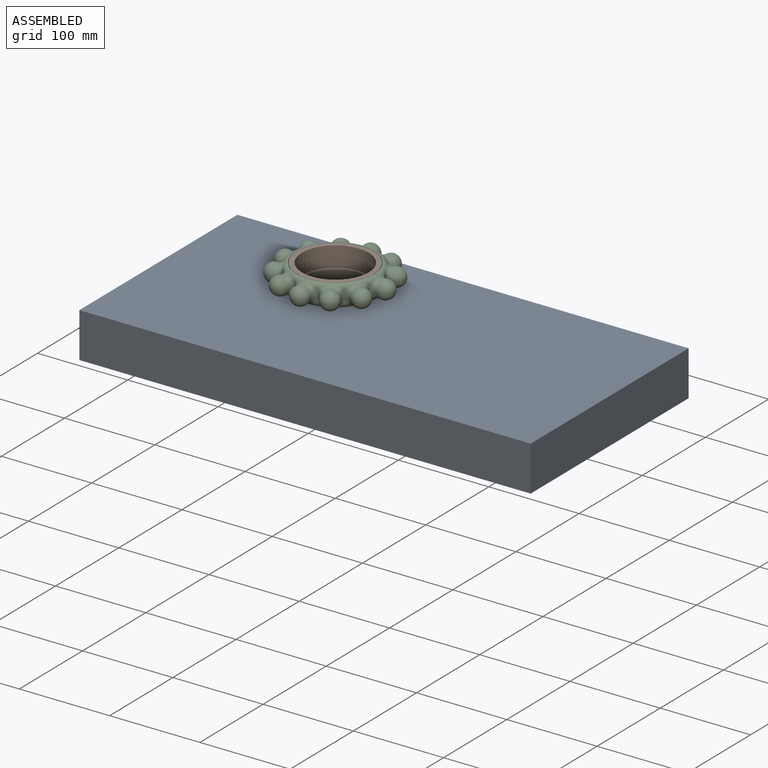
[diagram: assembled view]
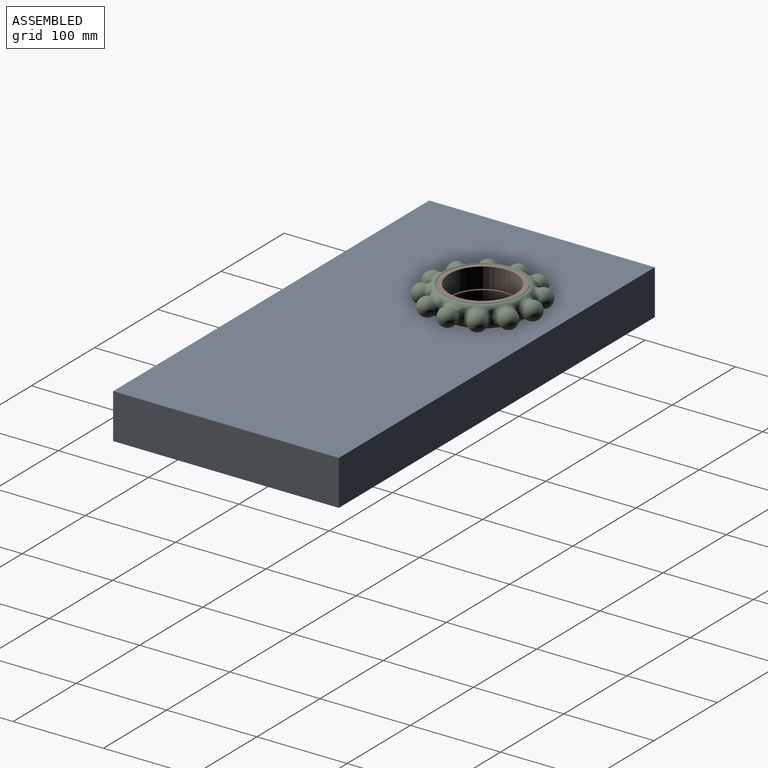
[diagram: assembled view, second angle]
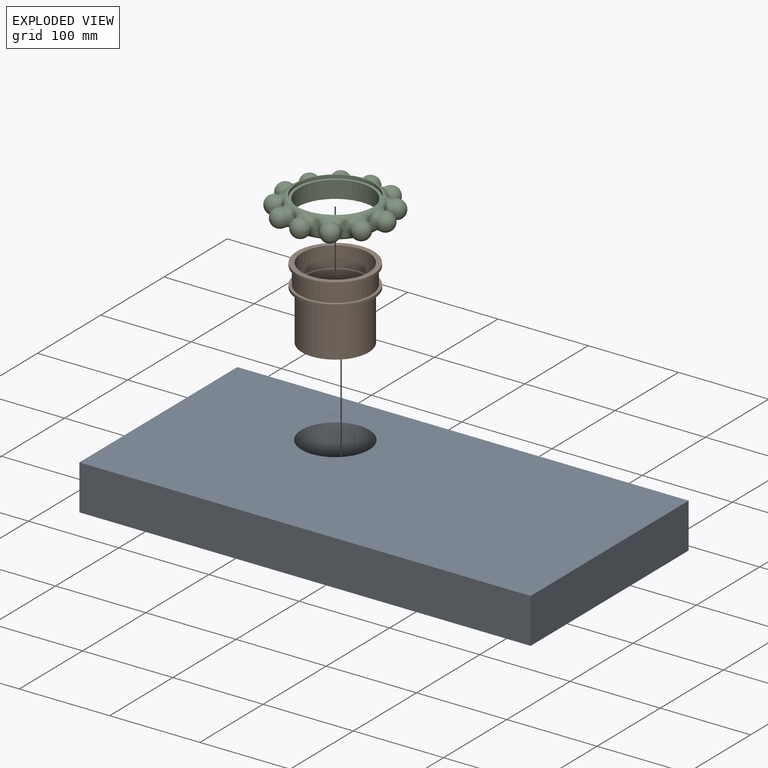
[diagram: exploded view]
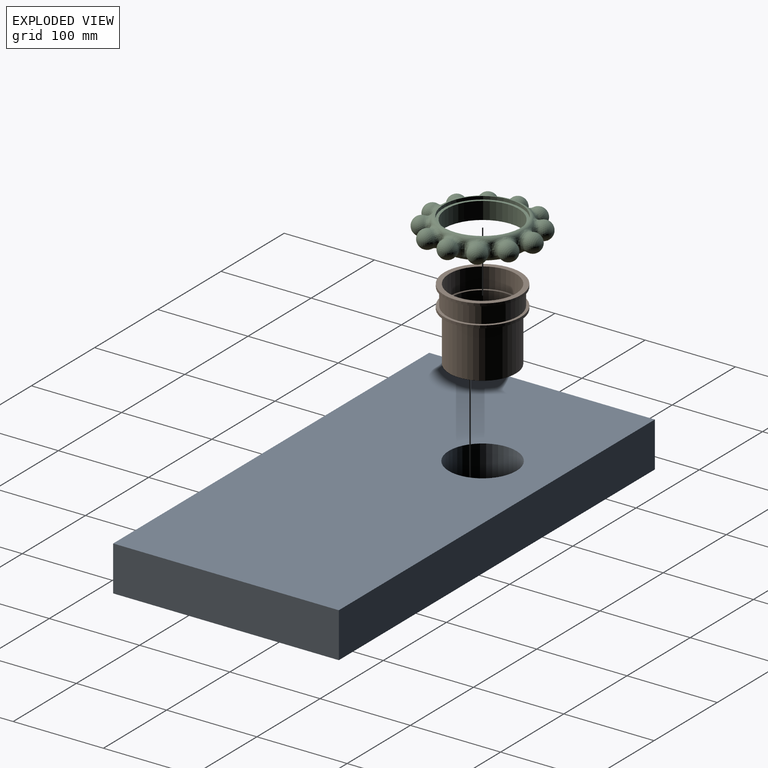
[diagram: exploded view, second angle]
ASSEMBLY  parts=3 mates=2
PART A: 7 faces, bbox 500x250x50 mm
  f0: plane 500x250mm, normal (0,0,-1), area 120582.1mm2, adj f1,f3,f4,f5,f6
  f1: plane 250x50mm, normal (-1,0,0), area 12500mm2, adj f0,f2,f4,f5
  f2: plane 500x250mm, normal (0,0,1), area 120582.1mm2, adj f1,f3,f4,f5,f6
  f3: plane 250x50mm, normal (1,0,0), area 12500mm2, adj f0,f2,f4,f5
  f4: plane 500x50mm, normal (0,1,0), area 25000mm2, adj f0,f1,f2,f3
  f5: plane 500x50mm, normal (0,-1,0), area 25000mm2, adj f0,f1,f2,f3
  f6: cylinder r=37.5mm len=75mm, axis (0,0,1), area 11781mm2, adj f0,f2
PART B: 13 faces, bbox 85x85x80 mm
  f0: plane 74x74mm, normal (0,0,1), area 561.6mm2, adj f1,f3
  f1: cylinder r=34.5mm len=69mm, axis (0,0,1), area 11922.3mm2, adj f0,f2
  f2: plane 69x69mm, normal (0,0,1), area 3739.3mm2, adj f1
  f3: cylinder r=37mm len=74mm, axis (0,0,1), area 5230.8mm2, adj f0,f11
  f4: cylinder r=37mm len=74mm, axis (0,0,1), area 12786.3mm2, adj f5,f7
  f5: plane 74x74mm, normal (0,0,-1), area 4300.8mm2, adj f4
  f6: cylinder r=42.5mm len=85mm, axis (0,0,-1), area 801.1mm2, adj f7,f10
  f7: plane 85x85mm, normal (0,0,-1), area 1373.7mm2, adj f4,f6
  f8: plane 85x85mm, normal (0,0,-1), area 772.8mm2, adj f9,f12
  f9: cylinder r=39.5mm len=79mm, axis (0,0,1), area 4715.5mm2, adj f8,f10
  f10: plane 85x85mm, normal (0,0,1), area 772.8mm2, adj f6,f9
  f11: plane 85x85mm, normal (0,0,1), area 1373.7mm2, adj f3,f12
  f12: cylinder r=42.5mm len=85mm, axis (0,0,-1), area 801.1mm2, adj f8,f11
PART C: 91 faces, bbox 131.1x131.1x24 mm
  f0: cylinder r=48mm len=1.22mm, axis (0,0,-1), area 0.6mm2, adj f30,f85,f88
  f1: cylinder r=48mm len=1.22mm, axis (0,0,-1), area 0.6mm2, adj f29,f85,f88
  f2: cylinder r=48mm len=1.22mm, axis (0,0,-1), area 0.6mm2, adj f30,f77,f79
  f3: cylinder r=48mm len=1.22mm, axis (0,0,-1), area 0.6mm2, adj f29,f77,f79
  f4: cylinder r=48mm len=1.22mm, axis (0,0,-1), area 0.6mm2, adj f30,f69,f71
  f5: cylinder r=48mm len=1.22mm, axis (0,0,-1), area 0.6mm2, adj f29,f69,f71
  f6: cylinder r=48mm len=1.22mm, axis (0,0,-1), area 0.6mm2, adj f30,f61,f63
  f7: cylinder r=48mm len=1.22mm, axis (0,0,-1), area 0.6mm2, adj f29,f61,f63
  f8: cylinder r=48mm len=1.22mm, axis (0,0,-1), area 0.6mm2, adj f30,f53,f55
  f9: cylinder r=48mm len=1.22mm, axis (0,0,-1), area 0.6mm2, adj f29,f53,f55
  f10: cylinder r=48mm len=1.22mm, axis (0,0,-1), area 0.6mm2, adj f30,f45,f47
  f11: cylinder r=48mm len=1.22mm, axis (0,0,-1), area 0.6mm2, adj f29,f45,f47
  f12: cylinder r=48mm len=1.22mm, axis (0,0,-1), area 0.6mm2, adj f30,f46,f48
  f13: cylinder r=48mm len=1.22mm, axis (0,0,-1), area 0.6mm2, adj f29,f46,f48
  f14: cylinder r=48mm len=1.22mm, axis (0,0,-1), area 0.6mm2, adj f30,f54,f56
  f15: cylinder r=48mm len=1.22mm, axis (0,0,-1), area 0.6mm2, adj f29,f54,f56
  f16: cylinder r=48mm len=1.22mm, axis (0,0,-1), area 0.6mm2, adj f30,f62,f64
  f17: cylinder r=48mm len=1.22mm, axis (0,0,-1), area 0.6mm2, adj f29,f62,f64
  f18: cylinder r=48mm len=1.22mm, axis (0,0,-1), area 0.6mm2, adj f30,f70,f72
  f19: cylinder r=48mm len=1.22mm, axis (0,0,-1), area 0.6mm2, adj f29,f70,f72
  f20: cylinder r=48mm len=1.22mm, axis (0,0,-1), area 0.6mm2, adj f29,f87,f89
  f21: cylinder r=48mm len=1.22mm, axis (0,0,-1), area 0.6mm2, adj f30,f87,f89
  f22: cylinder r=48mm len=1.22mm, axis (0,0,-1), area 0.6mm2, adj f30,f78,f80
  f23: cylinder r=48mm len=1.22mm, axis (0,0,-1), area 0.6mm2, adj f29,f78,f80
  f24: cylinder r=43mm len=86mm, axis (0,0,-1), area 945.6mm2, adj f25,f30
  f25: plane 86x86mm, normal (0,0,1), area 782.3mm2, adj f24,f26
  f26: cylinder r=40mm len=80mm, axis (0,0,-1), area 4523.9mm2, adj f25,f27
  f27: plane 86x86mm, normal (0,0,-1), area 782.3mm2, adj f26,f28
  f28: cylinder r=43mm len=86mm, axis (0,0,-1), area 675.4mm2, adj f27,f29
  f29: torus R=43mm, axis (0,0,-1), area 1456.9mm2, adj f1,f3,f5,f7,f9,f11,f13,f15
  f30: torus R=43mm, axis (0,0,-1), area 1456.9mm2, adj f0,f2,f4,f6,f8,f10,f12,f14
  f31: sphere r=10mm, area 789.5mm2, adj f80,f83,f84,f87
  f32: sphere r=10mm, area 790.4mm2, adj f72,f75,f76,f78
  f33: sphere r=10mm, area 790.4mm2, adj f64,f67,f68,f70
  f34: sphere r=10mm, area 790.4mm2, adj f56,f59,f60,f62
  f35: sphere r=10mm, area 790.4mm2, adj f48,f51,f52,f54
  f36: sphere r=10mm, area 790.4mm2, adj f43,f44,f45,f46
  f37: sphere r=10mm, area 790.4mm2, adj f47,f49,f50,f53
  f38: sphere r=10mm, area 790.4mm2, adj f55,f57,f58,f61
  f39: sphere r=10mm, area 790.4mm2, adj f63,f65,f66,f69
  f40: sphere r=10mm, area 790.4mm2, adj f71,f73,f74,f77
  f41: sphere r=10mm, area 790.4mm2, adj f79,f81,f82,f85
  f42: sphere r=10mm, area 790.4mm2, adj f86,f88,f89,f90
  f43: bspline ~21.91x16.23mm, area 150.4mm2, adj f30,f36,f45,f46
  f44: bspline ~21.59x16.61mm, area 150.4mm2, adj f29,f36,f45,f46
  f45: bspline ~16.69x8.2mm, area 88.8mm2, adj f10,f11,f36,f43,f44,f47
  f46: bspline ~14x8.51mm, area 88.8mm2, adj f12,f13,f36,f43,f44,f48
  f47: bspline ~14x7.05mm, area 88.8mm2, adj f10,f11,f37,f45,f49,f50
  f48: bspline ~14x8.51mm, area 88.8mm2, adj f12,f13,f35,f46,f51,f52
  f49: bspline ~25.2x7.26mm, area 150.4mm2, adj f29,f37,f47,f53
  f50: bspline ~25.2x7.26mm, area 150.4mm2, adj f30,f37,f47,f53
  f51: bspline ~22.09x16.63mm, area 150.4mm2, adj f30,f35,f48,f54
  f52: bspline ~21.91x16.23mm, area 150.4mm2, adj f29,f35,f48,f54
  f53: bspline ~16.69x7.18mm, area 88.8mm2, adj f8,f9,f37,f49,f50,f55
  f54: bspline ~16.69x8.2mm, area 88.8mm2, adj f14,f15,f35,f51,f52,f56
  f55: bspline ~16.69x8.2mm, area 88.8mm2, adj f8,f9,f38,f53,f57,f58
  f56: bspline ~16.69x7.18mm, area 88.8mm2, adj f14,f15,f34,f54,f59,f60
  f57: bspline ~22.09x16.63mm, area 150.4mm2, adj f29,f38,f55,f61
  f58: bspline ~22.09x16.63mm, area 150.4mm2, adj f30,f38,f55,f61
  f59: bspline ~25.2x7.26mm, area 150.4mm2, adj f30,f34,f56,f62
  f60: bspline ~25.2x7.26mm, area 150.4mm2, adj f29,f34,f56,f62
  f61: bspline ~14x8.51mm, area 88.8mm2, adj f6,f7,f38,f57,f58,f63
  f62: bspline ~14x7.05mm, area 88.8mm2, adj f16,f17,f34,f59,f60,f64
  f63: bspline ~14x8.51mm, area 88.8mm2, adj f6,f7,f39,f61,f65,f66
  f64: bspline ~16.69x8.2mm, area 88.8mm2, adj f16,f17,f33,f62,f67,f68
  f65: bspline ~21.59x16.61mm, area 150.4mm2, adj f29,f39,f63,f69
  f66: bspline ~21.91x16.23mm, area 150.4mm2, adj f30,f39,f63,f69
  f67: bspline ~21.91x16.23mm, area 150.4mm2, adj f30,f33,f64,f70
  f68: bspline ~21.59x16.61mm, area 150.4mm2, adj f29,f33,f64,f70
  f69: bspline ~16.69x8.2mm, area 88.8mm2, adj f4,f5,f39,f65,f66,f71
  f70: bspline ~14x8.51mm, area 88.8mm2, adj f18,f19,f33,f67,f68,f72
  f71: bspline ~14x7.05mm, area 88.8mm2, adj f4,f5,f40,f69,f73,f74
  f72: bspline ~14x8.51mm, area 88.8mm2, adj f18,f19,f32,f70,f75,f76
  f73: bspline ~25.2x7.26mm, area 150.4mm2, adj f29,f40,f71,f77
  f74: bspline ~25.2x7.26mm, area 150.4mm2, adj f30,f40,f71,f77
  f75: bspline ~22.09x16.63mm, area 150.4mm2, adj f30,f32,f72,f78
  f76: bspline ~22.09x16.63mm, area 150.4mm2, adj f29,f32,f72,f78
  f77: bspline ~16.69x7.18mm, area 88.8mm2, adj f2,f3,f40,f73,f74,f79
  f78: bspline ~16.69x8.2mm, area 88.8mm2, adj f22,f23,f32,f75,f76,f80
  f79: bspline ~16.69x8.2mm, area 88.8mm2, adj f2,f3,f41,f77,f81,f82
  f80: bspline ~16.69x7.18mm, area 88.8mm2, adj f22,f23,f31,f78,f83,f84
  f81: bspline ~21.91x16.23mm, area 150.4mm2, adj f29,f41,f79,f85
  f82: bspline ~22.09x16.63mm, area 150.4mm2, adj f30,f41,f79,f85
  f83: bspline ~25.2x7.26mm, area 150.4mm2, adj f30,f31,f80,f87
  f84: bspline ~25.2x7.26mm, area 150.4mm2, adj f29,f31,f80,f87
  f85: bspline ~14x8.51mm, area 88.8mm2, adj f0,f1,f41,f81,f82,f88
  f86: bspline ~21.91x16.23mm, area 150.4mm2, adj f30,f42,f88,f89
  f87: bspline ~14x7.05mm, area 88.8mm2, adj f20,f21,f31,f83,f84,f89
  f88: bspline ~14x8.51mm, area 88.8mm2, adj f0,f1,f42,f85,f86,f90
  f89: bspline ~16.69x8.2mm, area 88.8mm2, adj f20,f21,f42,f86,f87,f90
  f90: bspline ~21.59x16.61mm, area 150.4mm2, adj f29,f42,f88,f89
PLACE A at identity
PLACE B at identity
PLACE C at identity
MATE slider B.f1 <-> A.f6  axis (0,0,1) through (0,0,0)mm
MATE revolute C.f0 <-> B.f1  axis (0,0,-1) through (0,0,-12.5)mm
